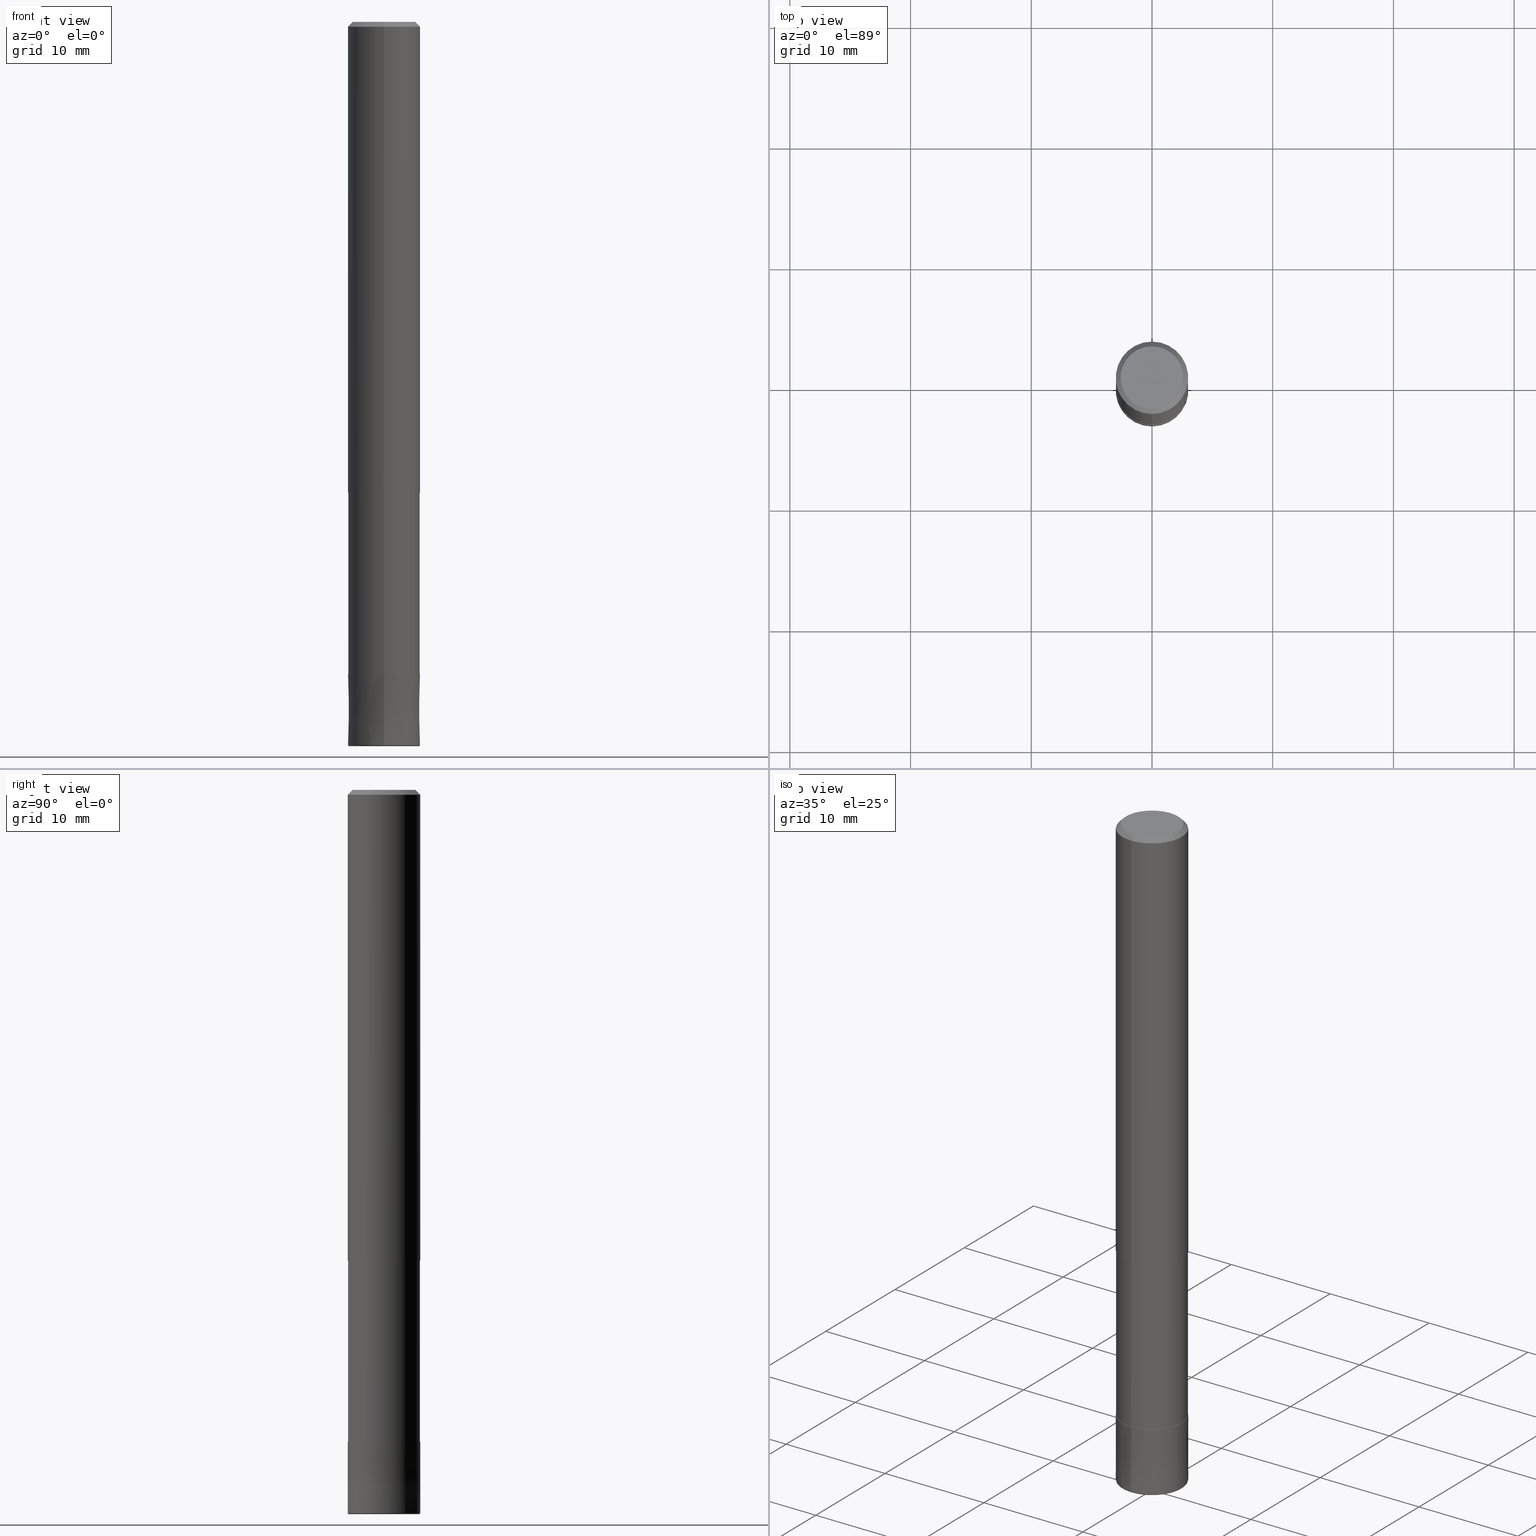
[diagram: canonical four-view strip — front | top / right | iso, engineering-drawing reading convention]
A machine part, canonical four-view strip (front | top / right | iso — engineering-drawing reading convention). The complete STEP part file that produces these views, byte-faithful:
ISO-10303-21;
HEADER;
FILE_DESCRIPTION(('no description'),'unknown implementation level');
FILE_NAME('HHRS6060-01-210-Huellk.stp','  ',('CIMSOURCE GmbH'),('CADClick - KiM GmbH - www.kimweb.de'),'unknown preprocess','ACIS','unknown authorization');
FILE_SCHEMA(('automotive_design'));
ENDSEC;
DATA;
#1=MECHANICAL_DESIGN_GEOMETRIC_PRESENTATION_REPRESENTATION(' ',(#14,#15,#16,#17,#18,#19,#20,#21,#22,#23,#24,#25,#26,#27,#28,#29,#30,#31,#32,#33,#34,#35,#36,#37,#38,#39,#40,#41,#42,#43,#44,#45,#46,#47,#48,#49,#50,#51,#52,#53,#54,#55,#56,#57,#58,#59,#60,#61,#62,#63,#64,#65,#66,#67,#68,#69,#70,#71,#72,#73,#74,#75,#76,#77,#78,#79,#80,#81,#82,#83,#84,#85,#86,#87,#88,#89,#90,#91,#92,#93,#94,#95,#96,#97),#10);
#2=PRODUCT_DEFINITION_CONTEXT('',#98,'design');
#3=APPLICATION_PROTOCOL_DEFINITION('INTERNATIONAL STANDARD','automotive_design',1994,#98);
#4=PRODUCT_CATEGORY_RELATIONSHIP('NONE','NONE',#99,#100);
#5=SHAPE_DEFINITION_REPRESENTATION(#101,#102);
#6=PRODUCT_DEFINITION_CONTEXT('',#103,'design');
#7=APPLICATION_PROTOCOL_DEFINITION('INTERNATIONAL STANDARD','automotive_design',1994,#103);
#8=PRODUCT_CATEGORY_RELATIONSHIP('NONE','NONE',#104,#105);
#9=SHAPE_DEFINITION_REPRESENTATION(#106,#107);
#10= (GEOMETRIC_REPRESENTATION_CONTEXT(3)GLOBAL_UNCERTAINTY_ASSIGNED_CONTEXT((#110))GLOBAL_UNIT_ASSIGNED_CONTEXT((#112,#113,#114))REPRESENTATION_CONTEXT('NONE','WORKSPACE'));
#14=STYLED_ITEM('',(#116),#117);
#15=STYLED_ITEM('',(#118),#119);
#16=STYLED_ITEM('',(#120),#121);
#17=STYLED_ITEM('',(#122),#123);
#18=STYLED_ITEM('',(#124),#125);
#19=STYLED_ITEM('',(#126),#127);
#20=STYLED_ITEM('',(#128),#129);
#21=STYLED_ITEM('',(#130),#131);
#22=STYLED_ITEM('',(#132),#133);
#23=STYLED_ITEM('',(#134),#135);
#24=STYLED_ITEM('',(#136),#137);
#25=STYLED_ITEM('',(#138),#139);
#26=STYLED_ITEM('',(#140),#141);
#27=STYLED_ITEM('',(#142),#143);
#28=STYLED_ITEM('',(#144),#145);
#29=STYLED_ITEM('',(#146),#147);
#30=STYLED_ITEM('',(#148),#149);
#31=STYLED_ITEM('',(#150),#151);
#32=STYLED_ITEM('',(#152),#153);
#33=STYLED_ITEM('',(#154),#155);
#34=STYLED_ITEM('',(#156),#157);
#35=STYLED_ITEM('',(#158),#159);
#36=STYLED_ITEM('',(#160),#161);
#37=STYLED_ITEM('',(#162),#163);
#38=STYLED_ITEM('',(#164),#165);
#39=STYLED_ITEM('',(#166),#167);
#40=STYLED_ITEM('',(#168),#169);
#41=STYLED_ITEM('',(#170),#171);
#42=STYLED_ITEM('',(#172),#173);
#43=STYLED_ITEM('',(#174),#175);
#44=STYLED_ITEM('',(#176),#177);
#45=STYLED_ITEM('',(#178),#179);
#46=STYLED_ITEM('',(#180),#181);
#47=STYLED_ITEM('',(#182),#183);
#48=STYLED_ITEM('',(#184),#185);
#49=STYLED_ITEM('',(#186),#187);
#50=STYLED_ITEM('',(#188),#189);
#51=STYLED_ITEM('',(#190),#191);
#52=STYLED_ITEM('',(#192),#193);
#53=STYLED_ITEM('',(#194),#195);
#54=STYLED_ITEM('',(#196),#197);
#55=STYLED_ITEM('',(#198),#199);
#56=STYLED_ITEM('',(#200),#201);
#57=STYLED_ITEM('',(#202),#203);
#58=STYLED_ITEM('',(#204),#205);
#59=STYLED_ITEM('',(#206),#207);
#60=STYLED_ITEM('',(#208),#209);
#61=STYLED_ITEM('',(#210),#211);
#62=STYLED_ITEM('',(#212),#213);
#63=STYLED_ITEM('',(#214),#215);
#64=STYLED_ITEM('',(#216),#217);
#65=STYLED_ITEM('',(#218),#219);
#66=STYLED_ITEM('',(#220),#221);
#67=STYLED_ITEM('',(#222),#223);
#68=STYLED_ITEM('',(#224),#225);
#69=STYLED_ITEM('',(#226),#227);
#70=STYLED_ITEM('',(#228),#229);
#71=STYLED_ITEM('',(#230),#231);
#72=STYLED_ITEM('',(#232),#233);
#73=STYLED_ITEM('',(#234),#235);
#74=STYLED_ITEM('',(#236),#237);
#75=STYLED_ITEM('',(#238),#239);
#76=STYLED_ITEM('',(#240),#241);
#77=STYLED_ITEM('',(#242),#243);
#78=STYLED_ITEM('',(#244),#245);
#79=STYLED_ITEM('',(#246),#247);
#80=STYLED_ITEM('',(#248),#249);
#81=STYLED_ITEM('',(#250),#251);
#82=STYLED_ITEM('',(#252),#253);
#83=STYLED_ITEM('',(#254),#255);
#84=STYLED_ITEM('',(#256),#257);
#85=STYLED_ITEM('',(#258),#259);
#86=STYLED_ITEM('',(#260),#261);
#87=STYLED_ITEM('',(#262),#263);
#88=STYLED_ITEM('',(#264),#265);
#89=STYLED_ITEM('',(#266),#267);
#90=STYLED_ITEM('',(#268),#269);
#91=STYLED_ITEM('',(#270),#271);
#92=STYLED_ITEM('',(#272),#273);
#93=STYLED_ITEM('',(#274),#275);
#94=STYLED_ITEM('',(#276),#277);
#95=STYLED_ITEM('',(#278),#279);
#96=STYLED_ITEM('',(#280),#281);
#97=STYLED_ITEM('',(#282),#283);
#98=APPLICATION_CONTEXT(' ');
#99=PRODUCT_CATEGORY('part','NONE');
#100=PRODUCT_RELATED_PRODUCT_CATEGORY('detail',' ',(#284));
#101=PRODUCT_DEFINITION_SHAPE('NONE','NONE',#285);
#102=ADVANCED_BREP_SHAPE_REPRESENTATION('1',(#137,#286),#10);
#103=APPLICATION_CONTEXT(' ');
#104=PRODUCT_CATEGORY('part','NONE');
#105=PRODUCT_RELATED_PRODUCT_CATEGORY('detail',' ',(#287));
#106=PRODUCT_DEFINITION_SHAPE('NONE','NONE',#288);
#107=ADVANCED_BREP_SHAPE_REPRESENTATION('2',(#197,#289),#10);
#110=UNCERTAINTY_MEASURE_WITH_UNIT(LENGTH_MEASURE(1.0E-006),#112,'','');
#112= (CONVERSION_BASED_UNIT('MILLIMETRE',#292)LENGTH_UNIT()NAMED_UNIT(#295));
#113= (NAMED_UNIT(#297)PLANE_ANGLE_UNIT()SI_UNIT($,.RADIAN.));
#114= (NAMED_UNIT(#297)SOLID_ANGLE_UNIT()SI_UNIT($,.STERADIAN.));
#116=PRESENTATION_STYLE_ASSIGNMENT((#303));
#117=ADVANCED_FACE('',(#304),#305,.T.);
#118=PRESENTATION_STYLE_ASSIGNMENT((#306));
#119=VERTEX_POINT('',#307);
#120=PRESENTATION_STYLE_ASSIGNMENT((#308));
#121=VERTEX_POINT('',#309);
#122=PRESENTATION_STYLE_ASSIGNMENT((#310));
#123=EDGE_CURVE('',#263,#261,#311,.T.);
#124=PRESENTATION_STYLE_ASSIGNMENT((#312));
#125=EDGE_CURVE('',#267,#209,#313,.T.);
#126=PRESENTATION_STYLE_ASSIGNMENT((#314));
#127=EDGE_CURVE('',#121,#271,#315,.T.);
#128=PRESENTATION_STYLE_ASSIGNMENT((#316));
#129=EDGE_CURVE('',#271,#267,#317,.T.);
#130=PRESENTATION_STYLE_ASSIGNMENT((#318));
#131=ADVANCED_FACE('',(#319),#320,.T.);
#132=PRESENTATION_STYLE_ASSIGNMENT((#321));
#133=EDGE_CURVE('',#157,#217,#322,.T.);
#134=PRESENTATION_STYLE_ASSIGNMENT((#323));
#135=ADVANCED_FACE('',(#324),#325,.T.);
#136=PRESENTATION_STYLE_ASSIGNMENT((#326));
#137=MANIFOLD_SOLID_BREP('1',#327);
#138=PRESENTATION_STYLE_ASSIGNMENT((#328));
#139=ADVANCED_FACE('',(#329),#330,.T.);
#140=PRESENTATION_STYLE_ASSIGNMENT((#331));
#141=VERTEX_POINT('',#332);
#142=PRESENTATION_STYLE_ASSIGNMENT((#333));
#143=EDGE_CURVE('',#141,#171,#334,.T.);
#144=PRESENTATION_STYLE_ASSIGNMENT((#335));
#145=VERTEX_POINT('',#336);
#146=PRESENTATION_STYLE_ASSIGNMENT((#337));
#147=EDGE_CURVE('',#263,#201,#338,.T.);
#148=PRESENTATION_STYLE_ASSIGNMENT((#339));
#149=EDGE_CURVE('',#169,#157,#340,.T.);
#150=PRESENTATION_STYLE_ASSIGNMENT((#341));
#151=EDGE_CURVE('',#217,#157,#342,.T.);
#152=PRESENTATION_STYLE_ASSIGNMENT((#343));
#153=VERTEX_POINT('',#344);
#154=PRESENTATION_STYLE_ASSIGNMENT((#345));
#155=ADVANCED_FACE('',(#346,#347),#348,.T.);
#156=PRESENTATION_STYLE_ASSIGNMENT((#349));
#157=VERTEX_POINT('',#350);
#158=PRESENTATION_STYLE_ASSIGNMENT((#351));
#159=ADVANCED_FACE('',(#352),#353,.T.);
#160=PRESENTATION_STYLE_ASSIGNMENT((#354));
#161=EDGE_CURVE('',#231,#145,#355,.T.);
#162=PRESENTATION_STYLE_ASSIGNMENT((#356));
#163=ADVANCED_FACE('',(#357),#358,.T.);
#164=PRESENTATION_STYLE_ASSIGNMENT((#359));
#165=EDGE_CURVE('',#221,#169,#360,.T.);
#166=PRESENTATION_STYLE_ASSIGNMENT((#361));
#167=EDGE_CURVE('',#231,#119,#362,.T.);
#168=PRESENTATION_STYLE_ASSIGNMENT((#363));
#169=VERTEX_POINT('',#364);
#170=PRESENTATION_STYLE_ASSIGNMENT((#365));
#171=VERTEX_POINT('',#366);
#172=PRESENTATION_STYLE_ASSIGNMENT((#367));
#173=ADVANCED_FACE('',(#368),#369,.F.);
#174=PRESENTATION_STYLE_ASSIGNMENT((#370));
#175=VERTEX_POINT('',#371);
#176=PRESENTATION_STYLE_ASSIGNMENT((#372));
#177=EDGE_CURVE('',#185,#275,#373,.T.);
#178=PRESENTATION_STYLE_ASSIGNMENT((#374));
#179=EDGE_CURVE('',#267,#271,#375,.T.);
#180=PRESENTATION_STYLE_ASSIGNMENT((#376));
#181=EDGE_CURVE('',#261,#119,#377,.T.);
#182=PRESENTATION_STYLE_ASSIGNMENT((#378));
#183=ADVANCED_FACE('',(#379,#380),#381,.T.);
#184=PRESENTATION_STYLE_ASSIGNMENT((#382));
#185=VERTEX_POINT('',#383);
#186=PRESENTATION_STYLE_ASSIGNMENT((#384));
#187=VERTEX_POINT('',#385);
#188=PRESENTATION_STYLE_ASSIGNMENT((#386));
#189=ADVANCED_FACE('',(#387),#388,.T.);
#190=PRESENTATION_STYLE_ASSIGNMENT((#389));
#191=ADVANCED_FACE('',(#390),#391,.T.);
#192=PRESENTATION_STYLE_ASSIGNMENT((#392));
#193=EDGE_CURVE('',#187,#175,#393,.T.);
#194=PRESENTATION_STYLE_ASSIGNMENT((#394));
#195=EDGE_CURVE('',#153,#225,#395,.T.);
#196=PRESENTATION_STYLE_ASSIGNMENT((#396));
#197=MANIFOLD_SOLID_BREP('2',#397);
#198=PRESENTATION_STYLE_ASSIGNMENT((#398));
#199=EDGE_CURVE('',#217,#221,#399,.T.);
#200=PRESENTATION_STYLE_ASSIGNMENT((#400));
#201=VERTEX_POINT('',#401);
#202=PRESENTATION_STYLE_ASSIGNMENT((#402));
#203=EDGE_CURVE('',#119,#261,#403,.T.);
#204=PRESENTATION_STYLE_ASSIGNMENT((#404));
#205=EDGE_CURVE('',#121,#209,#405,.T.);
#206=PRESENTATION_STYLE_ASSIGNMENT((#406));
#207=EDGE_CURVE('',#225,#153,#407,.T.);
#208=PRESENTATION_STYLE_ASSIGNMENT((#408));
#209=VERTEX_POINT('',#409);
#210=PRESENTATION_STYLE_ASSIGNMENT((#410));
#211=EDGE_CURVE('',#141,#175,#411,.T.);
#212=PRESENTATION_STYLE_ASSIGNMENT((#412));
#213=EDGE_CURVE('',#175,#141,#413,.T.);
#214=PRESENTATION_STYLE_ASSIGNMENT((#414));
#215=EDGE_CURVE('',#273,#209,#415,.T.);
#216=PRESENTATION_STYLE_ASSIGNMENT((#416));
#217=VERTEX_POINT('',#417);
#218=PRESENTATION_STYLE_ASSIGNMENT((#418));
#219=ADVANCED_FACE('',(#419),#420,.F.);
#220=PRESENTATION_STYLE_ASSIGNMENT((#421));
#221=VERTEX_POINT('',#422);
#222=PRESENTATION_STYLE_ASSIGNMENT((#423));
#223=EDGE_CURVE('',#273,#277,#424,.T.);
#224=PRESENTATION_STYLE_ASSIGNMENT((#425));
#225=VERTEX_POINT('',#426);
#226=PRESENTATION_STYLE_ASSIGNMENT((#427));
#227=EDGE_CURVE('',#185,#225,#428,.T.);
#228=PRESENTATION_STYLE_ASSIGNMENT((#429));
#229=EDGE_CURVE('',#187,#171,#430,.T.);
#230=PRESENTATION_STYLE_ASSIGNMENT((#431));
#231=VERTEX_POINT('',#432);
#232=PRESENTATION_STYLE_ASSIGNMENT((#433));
#233=EDGE_CURVE('',#121,#277,#434,.T.);
#234=PRESENTATION_STYLE_ASSIGNMENT((#435));
#235=ADVANCED_FACE('',(#436),#437,.T.);
#236=PRESENTATION_STYLE_ASSIGNMENT((#438));
#237=EDGE_CURVE('',#277,#273,#439,.T.);
#238=PRESENTATION_STYLE_ASSIGNMENT((#440));
#239=EDGE_CURVE('',#153,#275,#441,.T.);
#240=PRESENTATION_STYLE_ASSIGNMENT((#442));
#241=EDGE_CURVE('',#275,#185,#443,.T.);
#242=PRESENTATION_STYLE_ASSIGNMENT((#444));
#243=EDGE_CURVE('',#261,#145,#445,.T.);
#244=PRESENTATION_STYLE_ASSIGNMENT((#446));
#245=EDGE_CURVE('',#119,#201,#447,.T.);
#246=PRESENTATION_STYLE_ASSIGNMENT((#448));
#247=ADVANCED_FACE('',(#449),#450,.T.);
#248=PRESENTATION_STYLE_ASSIGNMENT((#451));
#249=EDGE_CURVE('',#169,#221,#452,.T.);
#250=PRESENTATION_STYLE_ASSIGNMENT((#453));
#251=EDGE_CURVE('',#209,#121,#454,.T.);
#252=PRESENTATION_STYLE_ASSIGNMENT((#455));
#253=ADVANCED_FACE('',(#456),#457,.T.);
#254=PRESENTATION_STYLE_ASSIGNMENT((#458));
#255=ADVANCED_FACE('',(#459),#460,.T.);
#256=PRESENTATION_STYLE_ASSIGNMENT((#461));
#257=ADVANCED_FACE('',(#462),#463,.T.);
#258=PRESENTATION_STYLE_ASSIGNMENT((#464));
#259=ADVANCED_FACE('',(#465,#466),#467,.T.);
#260=PRESENTATION_STYLE_ASSIGNMENT((#468));
#261=VERTEX_POINT('',#469);
#262=PRESENTATION_STYLE_ASSIGNMENT((#470));
#263=VERTEX_POINT('',#471);
#264=PRESENTATION_STYLE_ASSIGNMENT((#472));
#265=EDGE_CURVE('',#145,#231,#473,.T.);
#266=PRESENTATION_STYLE_ASSIGNMENT((#474));
#267=VERTEX_POINT('',#475);
#268=PRESENTATION_STYLE_ASSIGNMENT((#476));
#269=ADVANCED_FACE('',(#477),#478,.T.);
#270=PRESENTATION_STYLE_ASSIGNMENT((#479));
#271=VERTEX_POINT('',#480);
#272=PRESENTATION_STYLE_ASSIGNMENT((#481));
#273=VERTEX_POINT('',#482);
#274=PRESENTATION_STYLE_ASSIGNMENT((#483));
#275=VERTEX_POINT('',#484);
#276=PRESENTATION_STYLE_ASSIGNMENT((#485));
#277=VERTEX_POINT('',#486);
#278=PRESENTATION_STYLE_ASSIGNMENT((#487));
#279=EDGE_CURVE('',#201,#263,#488,.T.);
#280=PRESENTATION_STYLE_ASSIGNMENT((#489));
#281=EDGE_CURVE('',#171,#187,#490,.T.);
#282=PRESENTATION_STYLE_ASSIGNMENT((#491));
#283=ADVANCED_FACE('',(#492,#493),#494,.T.);
#284=PRODUCT('1','1','PART-1-DESC',(#495));
#285=PRODUCT_DEFINITION('NONE','NONE',#496,#2);
#286=AXIS2_PLACEMENT_3D('',#497,#498,#499);
#287=PRODUCT('2','2','PART-2-DESC',(#500));
#288=PRODUCT_DEFINITION('NONE','NONE',#501,#6);
#289=AXIS2_PLACEMENT_3D('',#502,#503,#504);
#292=LENGTH_MEASURE_WITH_UNIT(LENGTH_MEASURE(1.0),#505);
#295=DIMENSIONAL_EXPONENTS(1.0,0.0,0.0,0.0,0.0,0.0,0.0);
#297=DIMENSIONAL_EXPONENTS(0.0,0.0,0.0,0.0,0.0,0.0,0.0);
#303=SURFACE_STYLE_USAGE(.BOTH.,#506);
#304=FACE_OUTER_BOUND('',#507,.T.);
#305=CYLINDRICAL_SURFACE('',#508,1.35);
#306=POINT_STYLE(' ',#509,POSITIVE_LENGTH_MEASURE(1.0E-006),#510);
#307=CARTESIAN_POINT('',(0.0,3.0,-0.399999999999999));
#308=POINT_STYLE(' ',#511,POSITIVE_LENGTH_MEASURE(1.0E-006),#512);
#309=CARTESIAN_POINT('',(3.67381906146713E-016,-3.0,-59.9));
#310=CURVE_STYLE('',#513,POSITIVE_LENGTH_MEASURE(1.0E-006),#514);
#311=LINE('',#515,#516);
#312=CURVE_STYLE('',#517,POSITIVE_LENGTH_MEASURE(1.0E-006),#518);
#313=CIRCLE('',#519,0.100000000000002);
#314=CURVE_STYLE('',#520,POSITIVE_LENGTH_MEASURE(1.0E-006),#521);
#315=CIRCLE('',#522,0.100000000000002);
#316=CURVE_STYLE('',#523,POSITIVE_LENGTH_MEASURE(1.0E-006),#524);
#317=CIRCLE('',#525,2.9);
#318=SURFACE_STYLE_USAGE(.BOTH.,#526);
#319=FACE_OUTER_BOUND('',#527,.T.);
#320=CONICAL_SURFACE('',#528,2.99995,1.69491525407856E-005);
#321=CURVE_STYLE('',#529,POSITIVE_LENGTH_MEASURE(1.0E-006),#530);
#322=CIRCLE('',#531,2.97495);
#323=SURFACE_STYLE_USAGE(.BOTH.,#532);
#324=FACE_OUTER_BOUND('',#533,.T.);
#325=CYLINDRICAL_SURFACE('',#534,3.0);
#326=SURFACE_STYLE_USAGE(.BOTH.,#535);
#327=CLOSED_SHELL('',(#139,#255,#135,#257,#259,#163,#191,#253,#159,#283,#117,#235));
#328=SURFACE_STYLE_USAGE(.BOTH.,#536);
#329=FACE_OUTER_BOUND('',#537,.T.);
#330=CYLINDRICAL_SURFACE('',#538,1.35);
#331=POINT_STYLE(' ',#539,POSITIVE_LENGTH_MEASURE(1.0E-006),#540);
#332=CARTESIAN_POINT('',(0.0,1.35,-54.0));
#333=CURVE_STYLE('',#541,POSITIVE_LENGTH_MEASURE(1.0E-006),#542);
#334=LINE('',#543,#544);
#335=POINT_STYLE(' ',#545,POSITIVE_LENGTH_MEASURE(1.0E-006),#546);
#336=CARTESIAN_POINT('',(3.18397651993818E-016,-2.6,0.0));
#337=CURVE_STYLE('',#547,POSITIVE_LENGTH_MEASURE(1.0E-006),#548);
#338=CIRCLE('',#549,3.0);
#339=CURVE_STYLE('',#550,POSITIVE_LENGTH_MEASURE(1.0E-006),#551);
#340=LINE('',#552,#553);
#341=CURVE_STYLE('',#554,POSITIVE_LENGTH_MEASURE(1.0E-006),#555);
#342=CIRCLE('',#556,2.97495);
#343=POINT_STYLE(' ',#557,POSITIVE_LENGTH_MEASURE(1.0E-006),#558);
#344=CARTESIAN_POINT('',(1.65321857766021E-016,-1.35,-60.0));
#345=SURFACE_STYLE_USAGE(.BOTH.,#559);
#346=FACE_OUTER_BOUND('',#560,.T.);
#347=FACE_BOUND('',#561,.T.);
#348=PLANE('',#562);
#349=POINT_STYLE(' ',#563,POSITIVE_LENGTH_MEASURE(1.0E-006),#564);
#350=CARTESIAN_POINT('',(3.64314267230388E-016,-2.97495,-39.0));
#351=SURFACE_STYLE_USAGE(.BOTH.,#565);
#352=FACE_OUTER_BOUND('',#566,.T.);
#353=CYLINDRICAL_SURFACE('',#567,2.97495);
#354=CURVE_STYLE('',#568,POSITIVE_LENGTH_MEASURE(1.0E-006),#569);
#355=CIRCLE('',#570,2.6);
#356=SURFACE_STYLE_USAGE(.BOTH.,#571);
#357=FACE_OUTER_BOUND('',#572,.T.);
#358=PLANE('',#573);
#359=CURVE_STYLE('',#574,POSITIVE_LENGTH_MEASURE(1.0E-006),#575);
#360=CIRCLE('',#576,2.97495);
#361=CURVE_STYLE('',#577,POSITIVE_LENGTH_MEASURE(1.0E-006),#578);
#362=LINE('',#579,#580);
#363=POINT_STYLE(' ',#581,POSITIVE_LENGTH_MEASURE(1.0E-006),#582);
#364=CARTESIAN_POINT('',(3.64314267230388E-016,-2.97495,-54.0));
#365=POINT_STYLE(' ',#583,POSITIVE_LENGTH_MEASURE(1.0E-006),#584);
#366=CARTESIAN_POINT('',(0.0,1.35,-59.9));
#367=SURFACE_STYLE_USAGE(.BOTH.,#585);
#368=FACE_OUTER_BOUND('',#586,.T.);
#369=CYLINDRICAL_SURFACE('',#587,1.35);
#370=POINT_STYLE(' ',#588,POSITIVE_LENGTH_MEASURE(1.0E-006),#589);
#371=CARTESIAN_POINT('',(1.65321857766021E-016,-1.35,-54.0));
#372=CURVE_STYLE('',#590,POSITIVE_LENGTH_MEASURE(1.0E-006),#591);
#373=CIRCLE('',#592,1.35);
#374=CURVE_STYLE('',#593,POSITIVE_LENGTH_MEASURE(1.0E-006),#594);
#375=CIRCLE('',#595,2.9);
#376=CURVE_STYLE('',#596,POSITIVE_LENGTH_MEASURE(1.0E-006),#597);
#377=CIRCLE('',#598,3.0);
#378=SURFACE_STYLE_USAGE(.BOTH.,#599);
#379=FACE_BOUND('',#600,.T.);
#380=FACE_OUTER_BOUND('',#601,.T.);
#381=PLANE('',#602);
#382=POINT_STYLE(' ',#603,POSITIVE_LENGTH_MEASURE(1.0E-006),#604);
#383=CARTESIAN_POINT('',(0.0,1.35,-54.0));
#384=POINT_STYLE(' ',#605,POSITIVE_LENGTH_MEASURE(1.0E-006),#606);
#385=CARTESIAN_POINT('',(1.65321857766021E-016,-1.35,-59.9));
#386=SURFACE_STYLE_USAGE(.BOTH.,#607);
#387=FACE_OUTER_BOUND('',#608,.T.);
#388=TOROIDAL_SURFACE('',#609,2.9,0.100000000000002);
#389=SURFACE_STYLE_USAGE(.BOTH.,#610);
#390=FACE_OUTER_BOUND('',#611,.T.);
#391=CONICAL_SURFACE('',#612,2.8,0.78539816339745);
#392=CURVE_STYLE('',#613,POSITIVE_LENGTH_MEASURE(1.0E-006),#614);
#393=LINE('',#615,#616);
#394=CURVE_STYLE('',#617,POSITIVE_LENGTH_MEASURE(1.0E-006),#618);
#395=CIRCLE('',#619,1.35);
#396=SURFACE_STYLE_USAGE(.BOTH.,#620);
#397=CLOSED_SHELL('',(#219,#247,#131,#155,#269,#189,#183,#173));
#398=CURVE_STYLE('',#621,POSITIVE_LENGTH_MEASURE(1.0E-006),#622);
#399=LINE('',#623,#624);
#400=POINT_STYLE(' ',#625,POSITIVE_LENGTH_MEASURE(1.0E-006),#626);
#401=CARTESIAN_POINT('',(0.0,3.0,-39.0));
#402=CURVE_STYLE('',#627,POSITIVE_LENGTH_MEASURE(1.0E-006),#628);
#403=CIRCLE('',#629,3.0);
#404=CURVE_STYLE('',#630,POSITIVE_LENGTH_MEASURE(1.0E-006),#631);
#405=CIRCLE('',#632,3.0);
#406=CURVE_STYLE('',#633,POSITIVE_LENGTH_MEASURE(1.0E-006),#634);
#407=CIRCLE('',#635,1.35);
#408=POINT_STYLE(' ',#636,POSITIVE_LENGTH_MEASURE(1.0E-006),#637);
#409=CARTESIAN_POINT('',(0.0,3.0,-59.9));
#410=CURVE_STYLE('',#638,POSITIVE_LENGTH_MEASURE(1.0E-006),#639);
#411=CIRCLE('',#640,1.35);
#412=CURVE_STYLE('',#641,POSITIVE_LENGTH_MEASURE(1.0E-006),#642);
#413=CIRCLE('',#643,1.35);
#414=CURVE_STYLE('',#644,POSITIVE_LENGTH_MEASURE(1.0E-006),#645);
#415=LINE('',#646,#647);
#416=POINT_STYLE(' ',#648,POSITIVE_LENGTH_MEASURE(1.0E-006),#649);
#417=CARTESIAN_POINT('',(0.0,2.97495,-39.0));
#418=SURFACE_STYLE_USAGE(.BOTH.,#650);
#419=FACE_OUTER_BOUND('',#651,.T.);
#420=CYLINDRICAL_SURFACE('',#652,1.35);
#421=POINT_STYLE(' ',#653,POSITIVE_LENGTH_MEASURE(1.0E-006),#654);
#422=CARTESIAN_POINT('',(0.0,2.97495,-54.0));
#423=CURVE_STYLE('',#655,POSITIVE_LENGTH_MEASURE(1.0E-006),#656);
#424=CIRCLE('',#657,2.9999);
#425=POINT_STYLE(' ',#658,POSITIVE_LENGTH_MEASURE(1.0E-006),#659);
#426=CARTESIAN_POINT('',(0.0,1.35,-60.0));
#427=CURVE_STYLE('',#660,POSITIVE_LENGTH_MEASURE(1.0E-006),#661);
#428=LINE('',#662,#663);
#429=CURVE_STYLE('',#664,POSITIVE_LENGTH_MEASURE(1.0E-006),#665);
#430=CIRCLE('',#666,1.35);
#431=POINT_STYLE(' ',#667,POSITIVE_LENGTH_MEASURE(1.0E-006),#668);
#432=CARTESIAN_POINT('',(0.0,2.6,0.0));
#433=CURVE_STYLE('',#669,POSITIVE_LENGTH_MEASURE(1.0E-006),#670);
#434=LINE('',#671,#672);
#435=SURFACE_STYLE_USAGE(.BOTH.,#673);
#436=FACE_OUTER_BOUND('',#674,.T.);
#437=PLANE('',#675);
#438=CURVE_STYLE('',#676,POSITIVE_LENGTH_MEASURE(1.0E-006),#677);
#439=CIRCLE('',#678,2.9999);
#440=CURVE_STYLE('',#679,POSITIVE_LENGTH_MEASURE(1.0E-006),#680);
#441=LINE('',#681,#682);
#442=CURVE_STYLE('',#683,POSITIVE_LENGTH_MEASURE(1.0E-006),#684);
#443=CIRCLE('',#685,1.35);
#444=CURVE_STYLE('',#686,POSITIVE_LENGTH_MEASURE(1.0E-006),#687);
#445=LINE('',#688,#689);
#446=CURVE_STYLE('',#690,POSITIVE_LENGTH_MEASURE(1.0E-006),#691);
#447=LINE('',#692,#693);
#448=SURFACE_STYLE_USAGE(.BOTH.,#694);
#449=FACE_OUTER_BOUND('',#695,.T.);
#450=TOROIDAL_SURFACE('',#696,2.9,0.100000000000002);
#451=CURVE_STYLE('',#697,POSITIVE_LENGTH_MEASURE(1.0E-006),#698);
#452=CIRCLE('',#699,2.97495);
#453=CURVE_STYLE('',#700,POSITIVE_LENGTH_MEASURE(1.0E-006),#701);
#454=CIRCLE('',#702,3.0);
#455=SURFACE_STYLE_USAGE(.BOTH.,#703);
#456=FACE_OUTER_BOUND('',#704,.T.);
#457=CYLINDRICAL_SURFACE('',#705,3.0);
#458=SURFACE_STYLE_USAGE(.BOTH.,#706);
#459=FACE_OUTER_BOUND('',#707,.T.);
#460=CYLINDRICAL_SURFACE('',#708,2.97495);
#461=SURFACE_STYLE_USAGE(.BOTH.,#709);
#462=FACE_OUTER_BOUND('',#710,.T.);
#463=CONICAL_SURFACE('',#711,2.8,0.78539816339745);
#464=SURFACE_STYLE_USAGE(.BOTH.,#712);
#465=FACE_OUTER_BOUND('',#713,.T.);
#466=FACE_BOUND('',#714,.T.);
#467=PLANE('',#715);
#468=POINT_STYLE(' ',#716,POSITIVE_LENGTH_MEASURE(1.0E-006),#717);
#469=CARTESIAN_POINT('',(3.67381906146713E-016,-3.0,-0.399999999999999));
#470=POINT_STYLE(' ',#718,POSITIVE_LENGTH_MEASURE(1.0E-006),#719);
#471=CARTESIAN_POINT('',(3.67381906146713E-016,-3.0,-39.0));
#472=CURVE_STYLE('',#720,POSITIVE_LENGTH_MEASURE(1.0E-006),#721);
#473=CIRCLE('',#722,2.6);
#474=POINT_STYLE(' ',#723,POSITIVE_LENGTH_MEASURE(1.0E-006),#724);
#475=CARTESIAN_POINT('',(0.0,2.9,-60.0));
#476=SURFACE_STYLE_USAGE(.BOTH.,#725);
#477=FACE_OUTER_BOUND('',#726,.T.);
#478=CONICAL_SURFACE('',#727,2.99995,1.69491525407856E-005);
#479=POINT_STYLE(' ',#728,POSITIVE_LENGTH_MEASURE(1.0E-006),#729);
#480=CARTESIAN_POINT('',(3.55135842608489E-016,-2.9,-60.0));
#481=POINT_STYLE(' ',#730,POSITIVE_LENGTH_MEASURE(1.0E-006),#731);
#482=CARTESIAN_POINT('',(0.0,2.9999,-54.0));
#483=POINT_STYLE(' ',#732,POSITIVE_LENGTH_MEASURE(1.0E-006),#733);
#484=CARTESIAN_POINT('',(1.65321857766021E-016,-1.35,-54.0));
#485=POINT_STYLE(' ',#734,POSITIVE_LENGTH_MEASURE(1.0E-006),#735);
#486=CARTESIAN_POINT('',(3.67369660083175E-016,-2.9999,-54.0));
#487=CURVE_STYLE('',#736,POSITIVE_LENGTH_MEASURE(1.0E-006),#737);
#488=CIRCLE('',#738,3.0);
#489=CURVE_STYLE('',#739,POSITIVE_LENGTH_MEASURE(1.0E-006),#740);
#490=CIRCLE('',#741,1.35);
#491=SURFACE_STYLE_USAGE(.BOTH.,#742);
#492=FACE_BOUND('',#743,.T.);
#493=FACE_OUTER_BOUND('',#744,.T.);
#494=PLANE('',#745);
#495=PRODUCT_CONTEXT('',#98,'mechanical');
#496=PRODUCT_DEFINITION_FORMATION_WITH_SPECIFIED_SOURCE(' ','NONE',#284,.NOT_KNOWN.);
#497=CARTESIAN_POINT('',(0.0,0.0,0.0));
#498=DIRECTION('',(0.0,0.0,1.0));
#499=DIRECTION('',(1.0,0.0,0.0));
#500=PRODUCT_CONTEXT('',#103,'mechanical');
#501=PRODUCT_DEFINITION_FORMATION_WITH_SPECIFIED_SOURCE(' ','NONE',#287,.NOT_KNOWN.);
#502=CARTESIAN_POINT('',(0.0,0.0,0.0));
#503=DIRECTION('',(0.0,0.0,1.0));
#504=DIRECTION('',(1.0,0.0,0.0));
#505= (NAMED_UNIT(#295)LENGTH_UNIT()SI_UNIT(.MILLI.,.METRE.));
#506=SURFACE_SIDE_STYLE('',(#747));
#507=EDGE_LOOP('',(#748,#749,#750,#751));
#508=AXIS2_PLACEMENT_3D('',#752,#753,#754);
#509=PRE_DEFINED_MARKER('');
#510=COLOUR_RGB('',0.498039215803146,0.498039215803146,0.498039215803146);
#511=PRE_DEFINED_MARKER('');
#512=COLOUR_RGB('',0.800000011920929,0.800000011920929,0.800000011920929);
#513=DRAUGHTING_PRE_DEFINED_CURVE_FONT('continuous');
#514=COLOUR_RGB('',0.498039215803146,0.498039215803146,0.498039215803146);
#515=CARTESIAN_POINT('',(3.67381906146713E-016,-3.0,-19.7));
#516=VECTOR('',#755,1.0);
#517=DRAUGHTING_PRE_DEFINED_CURVE_FONT('continuous');
#518=COLOUR_RGB('',0.800000011920929,0.800000011920929,0.800000011920929);
#519=AXIS2_PLACEMENT_3D('',#756,#757,#758);
#520=DRAUGHTING_PRE_DEFINED_CURVE_FONT('continuous');
#521=COLOUR_RGB('',0.800000011920929,0.800000011920929,0.800000011920929);
#522=AXIS2_PLACEMENT_3D('',#759,#760,#761);
#523=DRAUGHTING_PRE_DEFINED_CURVE_FONT('continuous');
#524=COLOUR_RGB('',0.800000011920929,0.800000011920929,0.800000011920929);
#525=AXIS2_PLACEMENT_3D('',#762,#763,#764);
#526=SURFACE_SIDE_STYLE('',(#765));
#527=EDGE_LOOP('',(#766,#767,#768,#769));
#528=AXIS2_PLACEMENT_3D('',#770,#771,#772);
#529=DRAUGHTING_PRE_DEFINED_CURVE_FONT('continuous');
#530=COLOUR_RGB('',0.498039215803146,0.498039215803146,0.498039215803146);
#531=AXIS2_PLACEMENT_3D('',#773,#774,#775);
#532=SURFACE_SIDE_STYLE('',(#776));
#533=EDGE_LOOP('',(#777,#778,#779,#780));
#534=AXIS2_PLACEMENT_3D('',#781,#782,#783);
#535=SURFACE_SIDE_STYLE('',(#784));
#536=SURFACE_SIDE_STYLE('',(#785));
#537=EDGE_LOOP('',(#786,#787,#788,#789));
#538=AXIS2_PLACEMENT_3D('',#790,#791,#792);
#539=PRE_DEFINED_MARKER('');
#540=COLOUR_RGB('',0.498039215803146,0.498039215803146,0.498039215803146);
#541=DRAUGHTING_PRE_DEFINED_CURVE_FONT('continuous');
#542=COLOUR_RGB('',0.498039215803146,0.498039215803146,0.498039215803146);
#543=CARTESIAN_POINT('',(-1.65321857766021E-016,1.35,-56.95));
#544=VECTOR('',#793,1.0);
#545=PRE_DEFINED_MARKER('');
#546=COLOUR_RGB('',0.498039215803146,0.498039215803146,0.498039215803146);
#547=DRAUGHTING_PRE_DEFINED_CURVE_FONT('continuous');
#548=COLOUR_RGB('',0.498039215803146,0.498039215803146,0.498039215803146);
#549=AXIS2_PLACEMENT_3D('',#794,#795,#796);
#550=DRAUGHTING_PRE_DEFINED_CURVE_FONT('continuous');
#551=COLOUR_RGB('',0.498039215803146,0.498039215803146,0.498039215803146);
#552=CARTESIAN_POINT('',(3.64314267230388E-016,-2.97495,-46.5));
#553=VECTOR('',#797,1.0);
#554=DRAUGHTING_PRE_DEFINED_CURVE_FONT('continuous');
#555=COLOUR_RGB('',0.498039215803146,0.498039215803146,0.498039215803146);
#556=AXIS2_PLACEMENT_3D('',#798,#799,#800);
#557=PRE_DEFINED_MARKER('');
#558=COLOUR_RGB('',0.800000011920929,0.800000011920929,0.800000011920929);
#559=SURFACE_SIDE_STYLE('',(#801));
#560=EDGE_LOOP('',(#802,#803));
#561=EDGE_LOOP('',(#804,#805));
#562=AXIS2_PLACEMENT_3D('',#806,#807,#808);
#563=PRE_DEFINED_MARKER('');
#564=COLOUR_RGB('',0.498039215803146,0.498039215803146,0.498039215803146);
#565=SURFACE_SIDE_STYLE('',(#809));
#566=EDGE_LOOP('',(#810,#811,#812,#813));
#567=AXIS2_PLACEMENT_3D('',#814,#815,#816);
#568=DRAUGHTING_PRE_DEFINED_CURVE_FONT('continuous');
#569=COLOUR_RGB('',0.498039215803146,0.498039215803146,0.498039215803146);
#570=AXIS2_PLACEMENT_3D('',#817,#818,#819);
#571=SURFACE_SIDE_STYLE('',(#820));
#572=EDGE_LOOP('',(#821,#822));
#573=AXIS2_PLACEMENT_3D('',#823,#824,#825);
#574=DRAUGHTING_PRE_DEFINED_CURVE_FONT('continuous');
#575=COLOUR_RGB('',0.498039215803146,0.498039215803146,0.498039215803146);
#576=AXIS2_PLACEMENT_3D('',#826,#827,#828);
#577=DRAUGHTING_PRE_DEFINED_CURVE_FONT('continuous');
#578=COLOUR_RGB('',0.498039215803146,0.498039215803146,0.498039215803146);
#579=CARTESIAN_POINT('',(-3.42889779070266E-016,2.8,-0.200000000000003));
#580=VECTOR('',#829,1.0);
#581=PRE_DEFINED_MARKER('');
#582=COLOUR_RGB('',0.498039215803146,0.498039215803146,0.498039215803146);
#583=PRE_DEFINED_MARKER('');
#584=COLOUR_RGB('',0.498039215803146,0.498039215803146,0.498039215803146);
#585=SURFACE_SIDE_STYLE('',(#830));
#586=EDGE_LOOP('',(#831,#832,#833,#834));
#587=AXIS2_PLACEMENT_3D('',#835,#836,#837);
#588=PRE_DEFINED_MARKER('');
#589=COLOUR_RGB('',0.498039215803146,0.498039215803146,0.498039215803146);
#590=DRAUGHTING_PRE_DEFINED_CURVE_FONT('continuous');
#591=COLOUR_RGB('',0.800000011920929,0.800000011920929,0.800000011920929);
#592=AXIS2_PLACEMENT_3D('',#838,#839,#840);
#593=DRAUGHTING_PRE_DEFINED_CURVE_FONT('continuous');
#594=COLOUR_RGB('',0.800000011920929,0.800000011920929,0.800000011920929);
#595=AXIS2_PLACEMENT_3D('',#841,#842,#843);
#596=DRAUGHTING_PRE_DEFINED_CURVE_FONT('continuous');
#597=COLOUR_RGB('',0.498039215803146,0.498039215803146,0.498039215803146);
#598=AXIS2_PLACEMENT_3D('',#844,#845,#846);
#599=SURFACE_SIDE_STYLE('',(#847));
#600=EDGE_LOOP('',(#848,#849));
#601=EDGE_LOOP('',(#850,#851));
#602=AXIS2_PLACEMENT_3D('',#852,#853,#854);
#603=PRE_DEFINED_MARKER('');
#604=COLOUR_RGB('',0.800000011920929,0.800000011920929,0.800000011920929);
#605=PRE_DEFINED_MARKER('');
#606=COLOUR_RGB('',0.498039215803146,0.498039215803146,0.498039215803146);
#607=SURFACE_SIDE_STYLE('',(#855));
#608=EDGE_LOOP('',(#856,#857,#858,#859));
#609=AXIS2_PLACEMENT_3D('',#860,#861,#862);
#610=SURFACE_SIDE_STYLE('',(#863));
#611=EDGE_LOOP('',(#864,#865,#866,#867));
#612=AXIS2_PLACEMENT_3D('',#868,#869,#870);
#613=DRAUGHTING_PRE_DEFINED_CURVE_FONT('continuous');
#614=COLOUR_RGB('',0.498039215803146,0.498039215803146,0.498039215803146);
#615=CARTESIAN_POINT('',(1.65321857766021E-016,-1.35,-56.95));
#616=VECTOR('',#871,1.0);
#617=DRAUGHTING_PRE_DEFINED_CURVE_FONT('continuous');
#618=COLOUR_RGB('',0.800000011920929,0.800000011920929,0.800000011920929);
#619=AXIS2_PLACEMENT_3D('',#872,#873,#874);
#620=SURFACE_SIDE_STYLE('',(#875));
#621=DRAUGHTING_PRE_DEFINED_CURVE_FONT('continuous');
#622=COLOUR_RGB('',0.498039215803146,0.498039215803146,0.498039215803146);
#623=CARTESIAN_POINT('',(-3.64314267230388E-016,2.97495,-46.5));
#624=VECTOR('',#876,1.0);
#625=PRE_DEFINED_MARKER('');
#626=COLOUR_RGB('',0.498039215803146,0.498039215803146,0.498039215803146);
#627=DRAUGHTING_PRE_DEFINED_CURVE_FONT('continuous');
#628=COLOUR_RGB('',0.498039215803146,0.498039215803146,0.498039215803146);
#629=AXIS2_PLACEMENT_3D('',#877,#878,#879);
#630=DRAUGHTING_PRE_DEFINED_CURVE_FONT('continuous');
#631=COLOUR_RGB('',0.800000011920929,0.800000011920929,0.800000011920929);
#632=AXIS2_PLACEMENT_3D('',#880,#881,#882);
#633=DRAUGHTING_PRE_DEFINED_CURVE_FONT('continuous');
#634=COLOUR_RGB('',0.800000011920929,0.800000011920929,0.800000011920929);
#635=AXIS2_PLACEMENT_3D('',#883,#884,#885);
#636=PRE_DEFINED_MARKER('');
#637=COLOUR_RGB('',0.800000011920929,0.800000011920929,0.800000011920929);
#638=DRAUGHTING_PRE_DEFINED_CURVE_FONT('continuous');
#639=COLOUR_RGB('',0.498039215803146,0.498039215803146,0.498039215803146);
#640=AXIS2_PLACEMENT_3D('',#886,#887,#888);
#641=DRAUGHTING_PRE_DEFINED_CURVE_FONT('continuous');
#642=COLOUR_RGB('',0.498039215803146,0.498039215803146,0.498039215803146);
#643=AXIS2_PLACEMENT_3D('',#889,#890,#891);
#644=DRAUGHTING_PRE_DEFINED_CURVE_FONT('continuous');
#645=COLOUR_RGB('',0.800000011920929,0.800000011920929,0.800000011920929);
#646=CARTESIAN_POINT('',(-3.67375783114944E-016,2.99995,-56.95));
#647=VECTOR('',#892,1.0);
#648=PRE_DEFINED_MARKER('');
#649=COLOUR_RGB('',0.498039215803146,0.498039215803146,0.498039215803146);
#650=SURFACE_SIDE_STYLE('',(#893));
#651=EDGE_LOOP('',(#894,#895,#896,#897));
#652=AXIS2_PLACEMENT_3D('',#898,#899,#900);
#653=PRE_DEFINED_MARKER('');
#654=COLOUR_RGB('',0.498039215803146,0.498039215803146,0.498039215803146);
#655=DRAUGHTING_PRE_DEFINED_CURVE_FONT('continuous');
#656=COLOUR_RGB('',0.800000011920929,0.800000011920929,0.800000011920929);
#657=AXIS2_PLACEMENT_3D('',#901,#902,#903);
#658=PRE_DEFINED_MARKER('');
#659=COLOUR_RGB('',0.800000011920929,0.800000011920929,0.800000011920929);
#660=DRAUGHTING_PRE_DEFINED_CURVE_FONT('continuous');
#661=COLOUR_RGB('',0.800000011920929,0.800000011920929,0.800000011920929);
#662=CARTESIAN_POINT('',(-1.65321857766021E-016,1.35,-57.0));
#663=VECTOR('',#904,1.0);
#664=DRAUGHTING_PRE_DEFINED_CURVE_FONT('continuous');
#665=COLOUR_RGB('',0.498039215803146,0.498039215803146,0.498039215803146);
#666=AXIS2_PLACEMENT_3D('',#905,#906,#907);
#667=PRE_DEFINED_MARKER('');
#668=COLOUR_RGB('',0.498039215803146,0.498039215803146,0.498039215803146);
#669=DRAUGHTING_PRE_DEFINED_CURVE_FONT('continuous');
#670=COLOUR_RGB('',0.800000011920929,0.800000011920929,0.800000011920929);
#671=CARTESIAN_POINT('',(3.67375783114944E-016,-2.99995,-56.95));
#672=VECTOR('',#908,1.0);
#673=SURFACE_SIDE_STYLE('',(#909));
#674=EDGE_LOOP('',(#910,#911));
#675=AXIS2_PLACEMENT_3D('',#912,#913,#914);
#676=DRAUGHTING_PRE_DEFINED_CURVE_FONT('continuous');
#677=COLOUR_RGB('',0.800000011920929,0.800000011920929,0.800000011920929);
#678=AXIS2_PLACEMENT_3D('',#915,#916,#917);
#679=DRAUGHTING_PRE_DEFINED_CURVE_FONT('continuous');
#680=COLOUR_RGB('',0.800000011920929,0.800000011920929,0.800000011920929);
#681=CARTESIAN_POINT('',(1.65321857766021E-016,-1.35,-57.0));
#682=VECTOR('',#918,1.0);
#683=DRAUGHTING_PRE_DEFINED_CURVE_FONT('continuous');
#684=COLOUR_RGB('',0.800000011920929,0.800000011920929,0.800000011920929);
#685=AXIS2_PLACEMENT_3D('',#919,#920,#921);
#686=DRAUGHTING_PRE_DEFINED_CURVE_FONT('continuous');
#687=COLOUR_RGB('',0.498039215803146,0.498039215803146,0.498039215803146);
#688=CARTESIAN_POINT('',(3.42889779070266E-016,-2.8,-0.200000000000003));
#689=VECTOR('',#922,1.0);
#690=DRAUGHTING_PRE_DEFINED_CURVE_FONT('continuous');
#691=COLOUR_RGB('',0.498039215803146,0.498039215803146,0.498039215803146);
#692=CARTESIAN_POINT('',(-3.67381906146713E-016,3.0,-19.7));
#693=VECTOR('',#923,1.0);
#694=SURFACE_SIDE_STYLE('',(#924));
#695=EDGE_LOOP('',(#925,#926,#927,#928));
#696=AXIS2_PLACEMENT_3D('',#929,#930,#931);
#697=DRAUGHTING_PRE_DEFINED_CURVE_FONT('continuous');
#698=COLOUR_RGB('',0.498039215803146,0.498039215803146,0.498039215803146);
#699=AXIS2_PLACEMENT_3D('',#932,#933,#934);
#700=DRAUGHTING_PRE_DEFINED_CURVE_FONT('continuous');
#701=COLOUR_RGB('',0.800000011920929,0.800000011920929,0.800000011920929);
#702=AXIS2_PLACEMENT_3D('',#935,#936,#937);
#703=SURFACE_SIDE_STYLE('',(#938));
#704=EDGE_LOOP('',(#939,#940,#941,#942));
#705=AXIS2_PLACEMENT_3D('',#943,#944,#945);
#706=SURFACE_SIDE_STYLE('',(#946));
#707=EDGE_LOOP('',(#947,#948,#949,#950));
#708=AXIS2_PLACEMENT_3D('',#951,#952,#953);
#709=SURFACE_SIDE_STYLE('',(#954));
#710=EDGE_LOOP('',(#955,#956,#957,#958));
#711=AXIS2_PLACEMENT_3D('',#959,#960,#961);
#712=SURFACE_SIDE_STYLE('',(#962));
#713=EDGE_LOOP('',(#963,#964));
#714=EDGE_LOOP('',(#965,#966));
#715=AXIS2_PLACEMENT_3D('',#967,#968,#969);
#716=PRE_DEFINED_MARKER('');
#717=COLOUR_RGB('',0.498039215803146,0.498039215803146,0.498039215803146);
#718=PRE_DEFINED_MARKER('');
#719=COLOUR_RGB('',0.498039215803146,0.498039215803146,0.498039215803146);
#720=DRAUGHTING_PRE_DEFINED_CURVE_FONT('continuous');
#721=COLOUR_RGB('',0.498039215803146,0.498039215803146,0.498039215803146);
#722=AXIS2_PLACEMENT_3D('',#970,#971,#972);
#723=PRE_DEFINED_MARKER('');
#724=COLOUR_RGB('',0.800000011920929,0.800000011920929,0.800000011920929);
#725=SURFACE_SIDE_STYLE('',(#973));
#726=EDGE_LOOP('',(#974,#975,#976,#977));
#727=AXIS2_PLACEMENT_3D('',#978,#979,#980);
#728=PRE_DEFINED_MARKER('');
#729=COLOUR_RGB('',0.800000011920929,0.800000011920929,0.800000011920929);
#730=PRE_DEFINED_MARKER('');
#731=COLOUR_RGB('',0.800000011920929,0.800000011920929,0.800000011920929);
#732=PRE_DEFINED_MARKER('');
#733=COLOUR_RGB('',0.800000011920929,0.800000011920929,0.800000011920929);
#734=PRE_DEFINED_MARKER('');
#735=COLOUR_RGB('',0.800000011920929,0.800000011920929,0.800000011920929);
#736=DRAUGHTING_PRE_DEFINED_CURVE_FONT('continuous');
#737=COLOUR_RGB('',0.498039215803146,0.498039215803146,0.498039215803146);
#738=AXIS2_PLACEMENT_3D('',#981,#982,#983);
#739=DRAUGHTING_PRE_DEFINED_CURVE_FONT('continuous');
#740=COLOUR_RGB('',0.498039215803146,0.498039215803146,0.498039215803146);
#741=AXIS2_PLACEMENT_3D('',#984,#985,#986);
#742=SURFACE_SIDE_STYLE('',(#987));
#743=EDGE_LOOP('',(#988,#989));
#744=EDGE_LOOP('',(#990,#991));
#745=AXIS2_PLACEMENT_3D('',#992,#993,#994);
#747=SURFACE_STYLE_FILL_AREA(#995);
#748=ORIENTED_EDGE('',*,*,#143,.T.);
#749=ORIENTED_EDGE('',*,*,#229,.F.);
#750=ORIENTED_EDGE('',*,*,#193,.T.);
#751=ORIENTED_EDGE('',*,*,#213,.T.);
#752=CARTESIAN_POINT('',(0.0,0.0,-56.95));
#753=DIRECTION('',(-0.0,-0.0,1.0));
#754=DIRECTION('',(0.0,1.0,0.0));
#755=DIRECTION('',(-0.0,-0.0,1.0));
#756=CARTESIAN_POINT('',(-3.55135842608489E-016,2.9,-59.9));
#757=DIRECTION('',(1.0,1.22460635382238E-016,0.0));
#758=DIRECTION('',(-1.22460635382238E-016,1.0,0.0));
#759=CARTESIAN_POINT('',(3.55135842608489E-016,-2.9,-59.9));
#760=DIRECTION('',(1.0,1.22460635382238E-016,0.0));
#761=DIRECTION('',(1.22460635382238E-016,-1.0,-0.0));
#762=CARTESIAN_POINT('',(0.0,0.0,-60.0));
#763=DIRECTION('',(0.0,0.0,-1.0));
#764=DIRECTION('',(0.0,1.0,0.0));
#765=SURFACE_STYLE_FILL_AREA(#996);
#766=ORIENTED_EDGE('',*,*,#215,.F.);
#767=ORIENTED_EDGE('',*,*,#223,.T.);
#768=ORIENTED_EDGE('',*,*,#233,.F.);
#769=ORIENTED_EDGE('',*,*,#251,.F.);
#770=CARTESIAN_POINT('',(0.0,0.0,-56.95));
#771=DIRECTION('',(0.0,-0.0,-1.0));
#772=DIRECTION('',(0.0,1.0,0.0));
#773=CARTESIAN_POINT('',(0.0,0.0,-39.0));
#774=DIRECTION('',(0.0,0.0,-1.0));
#775=DIRECTION('',(0.0,1.0,0.0));
#776=SURFACE_STYLE_FILL_AREA(#997);
#777=ORIENTED_EDGE('',*,*,#245,.F.);
#778=ORIENTED_EDGE('',*,*,#203,.T.);
#779=ORIENTED_EDGE('',*,*,#123,.F.);
#780=ORIENTED_EDGE('',*,*,#279,.F.);
#781=CARTESIAN_POINT('',(0.0,0.0,-19.7));
#782=DIRECTION('',(-0.0,-0.0,1.0));
#783=DIRECTION('',(0.0,1.0,0.0));
#784=SURFACE_STYLE_FILL_AREA(#998);
#785=SURFACE_STYLE_FILL_AREA(#999);
#786=ORIENTED_EDGE('',*,*,#143,.F.);
#787=ORIENTED_EDGE('',*,*,#211,.T.);
#788=ORIENTED_EDGE('',*,*,#193,.F.);
#789=ORIENTED_EDGE('',*,*,#281,.F.);
#790=CARTESIAN_POINT('',(0.0,0.0,-56.95));
#791=DIRECTION('',(-0.0,-0.0,1.0));
#792=DIRECTION('',(0.0,1.0,0.0));
#793=DIRECTION('',(0.0,0.0,-1.0));
#794=CARTESIAN_POINT('',(0.0,0.0,-39.0));
#795=DIRECTION('',(0.0,0.0,-1.0));
#796=DIRECTION('',(0.0,1.0,0.0));
#797=DIRECTION('',(-0.0,-0.0,1.0));
#798=CARTESIAN_POINT('',(0.0,0.0,-39.0));
#799=DIRECTION('',(0.0,0.0,-1.0));
#800=DIRECTION('',(0.0,1.0,0.0));
#801=SURFACE_STYLE_FILL_AREA(#1000);
#802=ORIENTED_EDGE('',*,*,#223,.F.);
#803=ORIENTED_EDGE('',*,*,#237,.F.);
#804=ORIENTED_EDGE('',*,*,#177,.T.);
#805=ORIENTED_EDGE('',*,*,#241,.T.);
#806=CARTESIAN_POINT('',(0.0,2.17495,-54.0));
#807=DIRECTION('',(-0.0,0.0,1.0));
#808=DIRECTION('',(0.0,-1.0,0.0));
#809=SURFACE_STYLE_FILL_AREA(#1001);
#810=ORIENTED_EDGE('',*,*,#199,.T.);
#811=ORIENTED_EDGE('',*,*,#249,.F.);
#812=ORIENTED_EDGE('',*,*,#149,.T.);
#813=ORIENTED_EDGE('',*,*,#133,.T.);
#814=CARTESIAN_POINT('',(0.0,0.0,-46.5));
#815=DIRECTION('',(-0.0,-0.0,1.0));
#816=DIRECTION('',(0.0,1.0,0.0));
#817=CARTESIAN_POINT('',(0.0,0.0,0.0));
#818=DIRECTION('',(0.0,0.0,-1.0));
#819=DIRECTION('',(0.0,1.0,0.0));
#820=SURFACE_STYLE_FILL_AREA(#1002);
#821=ORIENTED_EDGE('',*,*,#161,.F.);
#822=ORIENTED_EDGE('',*,*,#265,.F.);
#823=CARTESIAN_POINT('',(0.0,1.3,0.0));
#824=DIRECTION('',(-0.0,0.0,1.0));
#825=DIRECTION('',(0.0,-1.0,0.0));
#826=CARTESIAN_POINT('',(0.0,0.0,-54.0));
#827=DIRECTION('',(0.0,0.0,-1.0));
#828=DIRECTION('',(0.0,1.0,0.0));
#829=DIRECTION('',(-8.65927457071937E-017,0.707106781186549,-0.707106781186546));
#830=SURFACE_STYLE_FILL_AREA(#1003);
#831=ORIENTED_EDGE('',*,*,#227,.T.);
#832=ORIENTED_EDGE('',*,*,#207,.T.);
#833=ORIENTED_EDGE('',*,*,#239,.T.);
#834=ORIENTED_EDGE('',*,*,#177,.F.);
#835=CARTESIAN_POINT('',(0.0,0.0,-57.0));
#836=DIRECTION('',(-0.0,-0.0,1.0));
#837=DIRECTION('',(0.0,1.0,0.0));
#838=CARTESIAN_POINT('',(0.0,0.0,-54.0));
#839=DIRECTION('',(0.0,0.0,-1.0));
#840=DIRECTION('',(0.0,1.0,0.0));
#841=CARTESIAN_POINT('',(0.0,0.0,-60.0));
#842=DIRECTION('',(0.0,0.0,-1.0));
#843=DIRECTION('',(0.0,1.0,0.0));
#844=CARTESIAN_POINT('',(0.0,0.0,-0.399999999999999));
#845=DIRECTION('',(0.0,0.0,-1.0));
#846=DIRECTION('',(0.0,1.0,0.0));
#847=SURFACE_STYLE_FILL_AREA(#1004);
#848=ORIENTED_EDGE('',*,*,#207,.F.);
#849=ORIENTED_EDGE('',*,*,#195,.F.);
#850=ORIENTED_EDGE('',*,*,#179,.T.);
#851=ORIENTED_EDGE('',*,*,#129,.T.);
#852=CARTESIAN_POINT('',(0.0,2.125,-60.0));
#853=DIRECTION('',(0.0,0.0,-1.0));
#854=DIRECTION('',(0.0,1.0,0.0));
#855=SURFACE_STYLE_FILL_AREA(#1005);
#856=ORIENTED_EDGE('',*,*,#127,.T.);
#857=ORIENTED_EDGE('',*,*,#179,.F.);
#858=ORIENTED_EDGE('',*,*,#125,.T.);
#859=ORIENTED_EDGE('',*,*,#251,.T.);
#860=CARTESIAN_POINT('',(0.0,0.0,-59.9));
#861=DIRECTION('',(0.0,0.0,-1.0));
#862=DIRECTION('',(0.0,-1.0,0.0));
#863=SURFACE_STYLE_FILL_AREA(#1006);
#864=ORIENTED_EDGE('',*,*,#167,.T.);
#865=ORIENTED_EDGE('',*,*,#181,.F.);
#866=ORIENTED_EDGE('',*,*,#243,.T.);
#867=ORIENTED_EDGE('',*,*,#265,.T.);
#868=CARTESIAN_POINT('',(0.0,0.0,-0.200000000000003));
#869=DIRECTION('',(0.0,-0.0,-1.0));
#870=DIRECTION('',(0.0,1.0,0.0));
#871=DIRECTION('',(-0.0,-0.0,1.0));
#872=CARTESIAN_POINT('',(0.0,0.0,-60.0));
#873=DIRECTION('',(0.0,0.0,-1.0));
#874=DIRECTION('',(0.0,1.0,0.0));
#875=SURFACE_STYLE_FILL_AREA(#1007);
#876=DIRECTION('',(0.0,0.0,-1.0));
#877=CARTESIAN_POINT('',(0.0,0.0,-0.399999999999999));
#878=DIRECTION('',(0.0,0.0,-1.0));
#879=DIRECTION('',(0.0,1.0,0.0));
#880=CARTESIAN_POINT('',(0.0,0.0,-59.9));
#881=DIRECTION('',(0.0,0.0,-1.0));
#882=DIRECTION('',(0.0,1.0,0.0));
#883=CARTESIAN_POINT('',(0.0,0.0,-60.0));
#884=DIRECTION('',(0.0,0.0,-1.0));
#885=DIRECTION('',(0.0,1.0,0.0));
#886=CARTESIAN_POINT('',(0.0,0.0,-54.0));
#887=DIRECTION('',(0.0,0.0,-1.0));
#888=DIRECTION('',(0.0,1.0,0.0));
#889=CARTESIAN_POINT('',(0.0,0.0,-54.0));
#890=DIRECTION('',(0.0,0.0,-1.0));
#891=DIRECTION('',(0.0,1.0,0.0));
#892=DIRECTION('',(-2.0756039892357E-021,1.69491525399741E-005,-0.999999999856363));
#893=SURFACE_STYLE_FILL_AREA(#1008);
#894=ORIENTED_EDGE('',*,*,#227,.F.);
#895=ORIENTED_EDGE('',*,*,#241,.F.);
#896=ORIENTED_EDGE('',*,*,#239,.F.);
#897=ORIENTED_EDGE('',*,*,#195,.T.);
#898=CARTESIAN_POINT('',(0.0,0.0,-57.0));
#899=DIRECTION('',(-0.0,-0.0,1.0));
#900=DIRECTION('',(0.0,1.0,0.0));
#901=CARTESIAN_POINT('',(0.0,0.0,-54.0));
#902=DIRECTION('',(0.0,0.0,-1.0));
#903=DIRECTION('',(0.0,1.0,0.0));
#904=DIRECTION('',(0.0,-0.0,-1.0));
#905=CARTESIAN_POINT('',(0.0,0.0,-59.9));
#906=DIRECTION('',(0.0,0.0,-1.0));
#907=DIRECTION('',(0.0,1.0,0.0));
#908=DIRECTION('',(-2.0756039892357E-021,1.69491525399741E-005,0.999999999856363));
#909=SURFACE_STYLE_FILL_AREA(#1009);
#910=ORIENTED_EDGE('',*,*,#281,.T.);
#911=ORIENTED_EDGE('',*,*,#229,.T.);
#912=CARTESIAN_POINT('',(0.0,0.675,-59.9));
#913=DIRECTION('',(0.0,0.0,-1.0));
#914=DIRECTION('',(0.0,1.0,0.0));
#915=CARTESIAN_POINT('',(0.0,0.0,-54.0));
#916=DIRECTION('',(0.0,0.0,-1.0));
#917=DIRECTION('',(0.0,1.0,0.0));
#918=DIRECTION('',(0.0,-0.0,1.0));
#919=CARTESIAN_POINT('',(0.0,0.0,-54.0));
#920=DIRECTION('',(0.0,0.0,-1.0));
#921=DIRECTION('',(0.0,1.0,0.0));
#922=DIRECTION('',(-8.65927457071937E-017,0.707106781186549,0.707106781186546));
#923=DIRECTION('',(0.0,0.0,-1.0));
#924=SURFACE_STYLE_FILL_AREA(#1010);
#925=ORIENTED_EDGE('',*,*,#127,.F.);
#926=ORIENTED_EDGE('',*,*,#205,.T.);
#927=ORIENTED_EDGE('',*,*,#125,.F.);
#928=ORIENTED_EDGE('',*,*,#129,.F.);
#929=CARTESIAN_POINT('',(0.0,0.0,-59.9));
#930=DIRECTION('',(0.0,0.0,-1.0));
#931=DIRECTION('',(0.0,-1.0,0.0));
#932=CARTESIAN_POINT('',(0.0,0.0,-54.0));
#933=DIRECTION('',(0.0,0.0,-1.0));
#934=DIRECTION('',(0.0,1.0,0.0));
#935=CARTESIAN_POINT('',(0.0,0.0,-59.9));
#936=DIRECTION('',(0.0,0.0,-1.0));
#937=DIRECTION('',(0.0,1.0,0.0));
#938=SURFACE_STYLE_FILL_AREA(#1011);
#939=ORIENTED_EDGE('',*,*,#245,.T.);
#940=ORIENTED_EDGE('',*,*,#147,.F.);
#941=ORIENTED_EDGE('',*,*,#123,.T.);
#942=ORIENTED_EDGE('',*,*,#181,.T.);
#943=CARTESIAN_POINT('',(0.0,0.0,-19.7));
#944=DIRECTION('',(-0.0,-0.0,1.0));
#945=DIRECTION('',(0.0,1.0,0.0));
#946=SURFACE_STYLE_FILL_AREA(#1012);
#947=ORIENTED_EDGE('',*,*,#199,.F.);
#948=ORIENTED_EDGE('',*,*,#151,.T.);
#949=ORIENTED_EDGE('',*,*,#149,.F.);
#950=ORIENTED_EDGE('',*,*,#165,.F.);
#951=CARTESIAN_POINT('',(0.0,0.0,-46.5));
#952=DIRECTION('',(-0.0,-0.0,1.0));
#953=DIRECTION('',(0.0,1.0,0.0));
#954=SURFACE_STYLE_FILL_AREA(#1013);
#955=ORIENTED_EDGE('',*,*,#167,.F.);
#956=ORIENTED_EDGE('',*,*,#161,.T.);
#957=ORIENTED_EDGE('',*,*,#243,.F.);
#958=ORIENTED_EDGE('',*,*,#203,.F.);
#959=CARTESIAN_POINT('',(0.0,0.0,-0.200000000000003));
#960=DIRECTION('',(0.0,-0.0,-1.0));
#961=DIRECTION('',(0.0,1.0,0.0));
#962=SURFACE_STYLE_FILL_AREA(#1014);
#963=ORIENTED_EDGE('',*,*,#279,.T.);
#964=ORIENTED_EDGE('',*,*,#147,.T.);
#965=ORIENTED_EDGE('',*,*,#151,.F.);
#966=ORIENTED_EDGE('',*,*,#133,.F.);
#967=CARTESIAN_POINT('',(0.0,1.5,-39.0));
#968=DIRECTION('',(0.0,0.0,-1.0));
#969=DIRECTION('',(0.0,1.0,0.0));
#970=CARTESIAN_POINT('',(0.0,0.0,0.0));
#971=DIRECTION('',(0.0,0.0,-1.0));
#972=DIRECTION('',(0.0,1.0,0.0));
#973=SURFACE_STYLE_FILL_AREA(#1015);
#974=ORIENTED_EDGE('',*,*,#215,.T.);
#975=ORIENTED_EDGE('',*,*,#205,.F.);
#976=ORIENTED_EDGE('',*,*,#233,.T.);
#977=ORIENTED_EDGE('',*,*,#237,.T.);
#978=CARTESIAN_POINT('',(0.0,0.0,-56.95));
#979=DIRECTION('',(0.0,-0.0,-1.0));
#980=DIRECTION('',(0.0,1.0,0.0));
#981=CARTESIAN_POINT('',(0.0,0.0,-39.0));
#982=DIRECTION('',(0.0,0.0,-1.0));
#983=DIRECTION('',(0.0,1.0,0.0));
#984=CARTESIAN_POINT('',(0.0,0.0,-59.9));
#985=DIRECTION('',(0.0,0.0,-1.0));
#986=DIRECTION('',(0.0,1.0,0.0));
#987=SURFACE_STYLE_FILL_AREA(#1016);
#988=ORIENTED_EDGE('',*,*,#211,.F.);
#989=ORIENTED_EDGE('',*,*,#213,.F.);
#990=ORIENTED_EDGE('',*,*,#165,.T.);
#991=ORIENTED_EDGE('',*,*,#249,.T.);
#992=CARTESIAN_POINT('',(0.0,2.162475,-54.0));
#993=DIRECTION('',(0.0,0.0,-1.0));
#994=DIRECTION('',(0.0,1.0,0.0));
#995=FILL_AREA_STYLE('',(#1017));
#996=FILL_AREA_STYLE('',(#1018));
#997=FILL_AREA_STYLE('',(#1019));
#998=FILL_AREA_STYLE('',(#1020));
#999=FILL_AREA_STYLE('',(#1021));
#1000=FILL_AREA_STYLE('',(#1022));
#1001=FILL_AREA_STYLE('',(#1023));
#1002=FILL_AREA_STYLE('',(#1024));
#1003=FILL_AREA_STYLE('',(#1025));
#1004=FILL_AREA_STYLE('',(#1026));
#1005=FILL_AREA_STYLE('',(#1027));
#1006=FILL_AREA_STYLE('',(#1028));
#1007=FILL_AREA_STYLE('',(#1029));
#1008=FILL_AREA_STYLE('',(#1030));
#1009=FILL_AREA_STYLE('',(#1031));
#1010=FILL_AREA_STYLE('',(#1032));
#1011=FILL_AREA_STYLE('',(#1033));
#1012=FILL_AREA_STYLE('',(#1034));
#1013=FILL_AREA_STYLE('',(#1035));
#1014=FILL_AREA_STYLE('',(#1036));
#1015=FILL_AREA_STYLE('',(#1037));
#1016=FILL_AREA_STYLE('',(#1038));
#1017=FILL_AREA_STYLE_COLOUR('',#1039);
#1018=FILL_AREA_STYLE_COLOUR('',#1040);
#1019=FILL_AREA_STYLE_COLOUR('',#1041);
#1020=FILL_AREA_STYLE_COLOUR('',#1042);
#1021=FILL_AREA_STYLE_COLOUR('',#1043);
#1022=FILL_AREA_STYLE_COLOUR('',#1044);
#1023=FILL_AREA_STYLE_COLOUR('',#1045);
#1024=FILL_AREA_STYLE_COLOUR('',#1046);
#1025=FILL_AREA_STYLE_COLOUR('',#1047);
#1026=FILL_AREA_STYLE_COLOUR('',#1048);
#1027=FILL_AREA_STYLE_COLOUR('',#1049);
#1028=FILL_AREA_STYLE_COLOUR('',#1050);
#1029=FILL_AREA_STYLE_COLOUR('',#1051);
#1030=FILL_AREA_STYLE_COLOUR('',#1052);
#1031=FILL_AREA_STYLE_COLOUR('',#1053);
#1032=FILL_AREA_STYLE_COLOUR('',#1054);
#1033=FILL_AREA_STYLE_COLOUR('',#1055);
#1034=FILL_AREA_STYLE_COLOUR('',#1056);
#1035=FILL_AREA_STYLE_COLOUR('',#1057);
#1036=FILL_AREA_STYLE_COLOUR('',#1058);
#1037=FILL_AREA_STYLE_COLOUR('',#1059);
#1038=FILL_AREA_STYLE_COLOUR('',#1060);
#1039=COLOUR_RGB('',0.498039215803146,0.498039215803146,0.498039215803146);
#1040=COLOUR_RGB('',0.800000011920929,0.800000011920929,0.800000011920929);
#1041=COLOUR_RGB('',0.498039215803146,0.498039215803146,0.498039215803146);
#1042=COLOUR_RGB('',0.498039215803146,0.498039215803146,0.498039215803146);
#1043=COLOUR_RGB('',0.498039215803146,0.498039215803146,0.498039215803146);
#1044=COLOUR_RGB('',0.800000011920929,0.800000011920929,0.800000011920929);
#1045=COLOUR_RGB('',0.498039215803146,0.498039215803146,0.498039215803146);
#1046=COLOUR_RGB('',0.498039215803146,0.498039215803146,0.498039215803146);
#1047=COLOUR_RGB('',0.800000011920929,0.800000011920929,0.800000011920929);
#1048=COLOUR_RGB('',0.800000011920929,0.800000011920929,0.800000011920929);
#1049=COLOUR_RGB('',0.800000011920929,0.800000011920929,0.800000011920929);
#1050=COLOUR_RGB('',0.498039215803146,0.498039215803146,0.498039215803146);
#1051=COLOUR_RGB('',0.800000011920929,0.800000011920929,0.800000011920929);
#1052=COLOUR_RGB('',0.800000011920929,0.800000011920929,0.800000011920929);
#1053=COLOUR_RGB('',0.498039215803146,0.498039215803146,0.498039215803146);
#1054=COLOUR_RGB('',0.800000011920929,0.800000011920929,0.800000011920929);
#1055=COLOUR_RGB('',0.498039215803146,0.498039215803146,0.498039215803146);
#1056=COLOUR_RGB('',0.498039215803146,0.498039215803146,0.498039215803146);
#1057=COLOUR_RGB('',0.498039215803146,0.498039215803146,0.498039215803146);
#1058=COLOUR_RGB('',0.498039215803146,0.498039215803146,0.498039215803146);
#1059=COLOUR_RGB('',0.800000011920929,0.800000011920929,0.800000011920929);
#1060=COLOUR_RGB('',0.498039215803146,0.498039215803146,0.498039215803146);
#1061=AXIS2_PLACEMENT_3D('PCS',#1062,#1063,#1064);
#1062=CARTESIAN_POINT('',(0.0,0.0,0.0));
#1063=DIRECTION('',(0.0,0.0,1.0));
#1064=DIRECTION('',(1.0,0.0,0.0));
#1065=AXIS2_PLACEMENT_3D('CIP',#1066,#1067,#1068);
#1066=CARTESIAN_POINT('',(0.0,0.0,-60.0));
#1067=DIRECTION('',(0.0,0.0,1.0));
#1068=DIRECTION('',(1.0,0.0,0.0));
#1069=AXIS2_PLACEMENT_3D('CRP',#1070,#1071,#1072);
#1070=CARTESIAN_POINT('',(-3.0,0.0,-60.0));
#1071=DIRECTION('',(0.0,0.0,1.0));
#1072=DIRECTION('',(1.0,0.0,0.0));
#1073=AXIS2_PLACEMENT_3D('MCS',#1074,#1075,#1076);
#1074=CARTESIAN_POINT('',(0.0,0.0,-39.0));
#1075=DIRECTION('',(0.0,0.0,1.0));
#1076=DIRECTION('',(1.0,0.0,0.0));
#1077=CONSTRUCTIVE_GEOMETRY_REPRESENTATION_RELATIONSHIP('coordinate systems',$,#102,#1078);
#1078=CONSTRUCTIVE_GEOMETRY_REPRESENTATION('coordinate systems',(#1061,#1065,#1069,#1073),#10);
ENDSEC;
END-ISO-10303-21;
